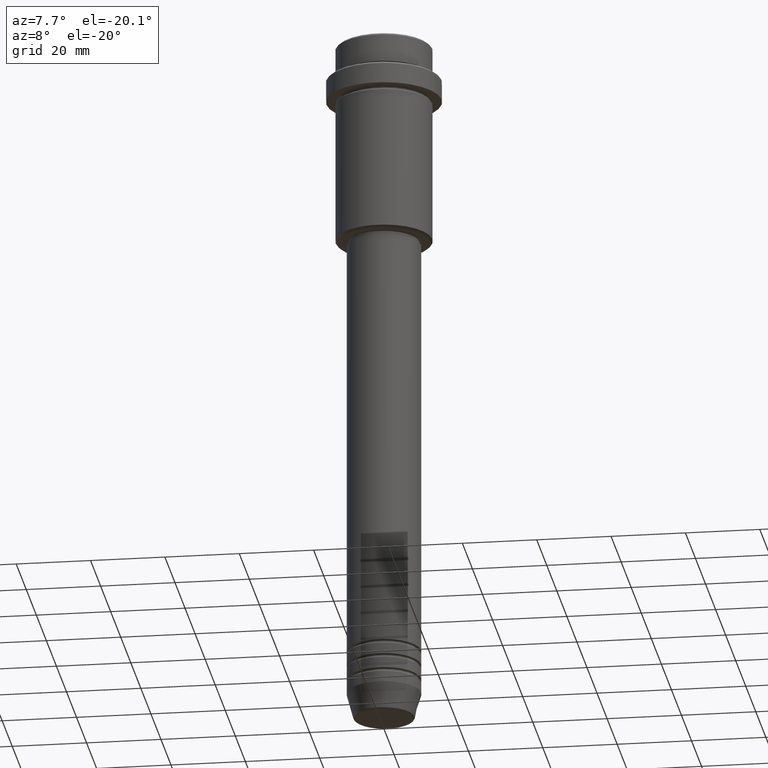
[diagram: clean part render]
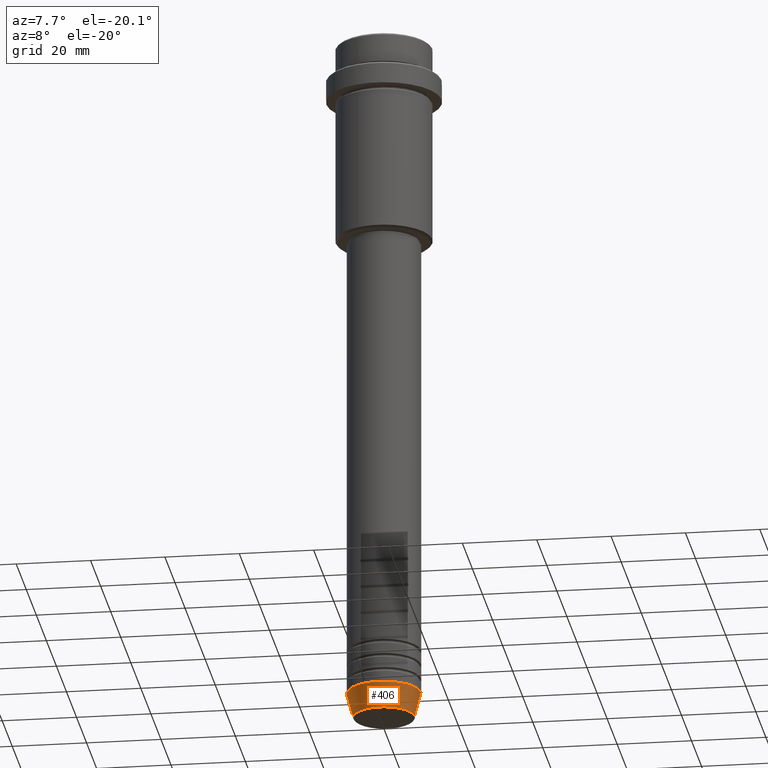
[diagram: same view with one face highlighted and labeled with its STEP entity id]
A machine part, auxiliary view. The second image highlights one B-rep face of the part: STEP entity #406.
In plain terms, the highlighted conical surface has half-angle 15 deg.
Its self-contained STEP definition (entity closure, byte-faithful):
#22 = CONICAL_SURFACE ( 'NONE', #256, 10.00000000000000000, 0.2617993877991500740 ) ;
#41 = VERTEX_POINT ( 'NONE', #1254 ) ;
#85 = ORIENTED_EDGE ( 'NONE', *, *, #673, .T. ) ;
#143 = LINE ( 'NONE', #382, #462 ) ;
#169 = DIRECTION ( 'NONE',  ( 0.2588190451025213501, 0.000000000000000000, 0.9659258262890680902 ) ) ;
#179 = VERTEX_POINT ( 'NONE', #815 ) ;
#180 = VERTEX_POINT ( 'NONE', #476 ) ;
#190 = AXIS2_PLACEMENT_3D ( 'NONE', #645, #1037, #1288 ) ;
#256 = AXIS2_PLACEMENT_3D ( 'NONE', #1258, #275, #492 ) ;
#275 = DIRECTION ( 'NONE',  ( -0.000000000000000000, -0.000000000000000000, 1.000000000000000000 ) ) ;
#304 = CARTESIAN_POINT ( 'NONE',  ( -8.223655072137191269, 1.115877042642912054E-15, -189.6294095225512422 ) ) ;
#382 = CARTESIAN_POINT ( 'NONE',  ( 10.00000000000000000, 0.000000000000000000, -183.0000000000000000 ) ) ;
#406 = ADVANCED_FACE ( 'NONE', ( #860 ), #22, .T. ) ;
#441 = EDGE_CURVE ( 'NONE', #861, #180, #712, .T. ) ;
#462 = VECTOR ( 'NONE', #169, 1000.000000000000000 ) ;
#464 = VECTOR ( 'NONE', #1011, 1000.000000000000000 ) ;
#476 = CARTESIAN_POINT ( 'NONE',  ( 8.223655072137191269, 0.000000000000000000, -189.6294095225512422 ) ) ;
#492 = DIRECTION ( 'NONE',  ( 1.000000000000000000, 0.000000000000000000, 0.000000000000000000 ) ) ;
#495 = DIRECTION ( 'NONE',  ( 1.000000000000000000, 0.000000000000000000, 0.000000000000000000 ) ) ;
#645 = CARTESIAN_POINT ( 'NONE',  ( 0.000000000000000000, 0.000000000000000000, -189.6294095225512422 ) ) ;
#673 = EDGE_CURVE ( 'NONE', #180, #41, #143, .T. ) ;
#685 = CARTESIAN_POINT ( 'NONE',  ( -10.00000000000000000, 1.224646799147353256E-15, -183.0000000000000000 ) ) ;
#695 = EDGE_LOOP ( 'NONE', ( #1241, #1033, #85, #951 ) ) ;
#712 = CIRCLE ( 'NONE', #190, 8.223655072137191269 ) ;
#815 = CARTESIAN_POINT ( 'NONE',  ( -10.00000000000000000, 1.224646799147353256E-15, -183.0000000000000000 ) ) ;
#860 = FACE_OUTER_BOUND ( 'NONE', #695, .T. ) ;
#861 = VERTEX_POINT ( 'NONE', #304 ) ;
#951 = ORIENTED_EDGE ( 'NONE', *, *, #1158, .F. ) ;
#986 = CIRCLE ( 'NONE', #1213, 10.00000000000000000 ) ;
#1011 = DIRECTION ( 'NONE',  ( -0.2588190451025213501, 3.169619151431772337E-17, 0.9659258262890680902 ) ) ;
#1017 = DIRECTION ( 'NONE',  ( -0.000000000000000000, -0.000000000000000000, 1.000000000000000000 ) ) ;
#1033 = ORIENTED_EDGE ( 'NONE', *, *, #441, .T. ) ;
#1037 = DIRECTION ( 'NONE',  ( -0.000000000000000000, -0.000000000000000000, 1.000000000000000000 ) ) ;
#1038 = LINE ( 'NONE', #685, #464 ) ;
#1158 = EDGE_CURVE ( 'NONE', #179, #41, #986, .T. ) ;
#1213 = AXIS2_PLACEMENT_3D ( 'NONE', #1239, #1017, #495 ) ;
#1216 = EDGE_CURVE ( 'NONE', #861, #179, #1038, .T. ) ;
#1239 = CARTESIAN_POINT ( 'NONE',  ( 0.000000000000000000, 0.000000000000000000, -183.0000000000000000 ) ) ;
#1241 = ORIENTED_EDGE ( 'NONE', *, *, #1216, .F. ) ;
#1254 = CARTESIAN_POINT ( 'NONE',  ( 10.00000000000000000, 0.000000000000000000, -183.0000000000000000 ) ) ;
#1258 = CARTESIAN_POINT ( 'NONE',  ( 0.000000000000000000, 0.000000000000000000, -183.0000000000000000 ) ) ;
#1288 = DIRECTION ( 'NONE',  ( 1.000000000000000000, 0.000000000000000000, 0.000000000000000000 ) ) ;